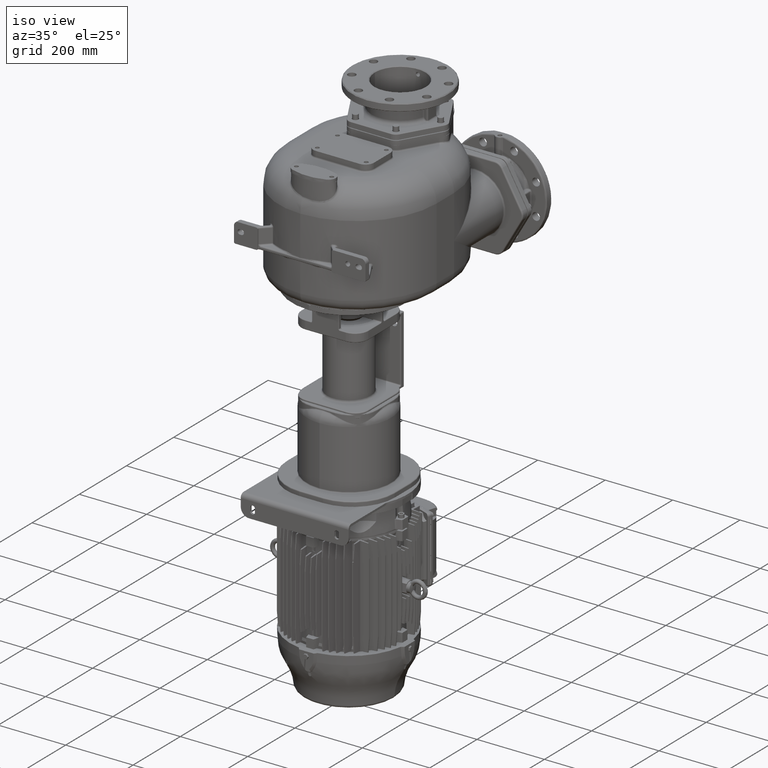
[diagram: clean part render]
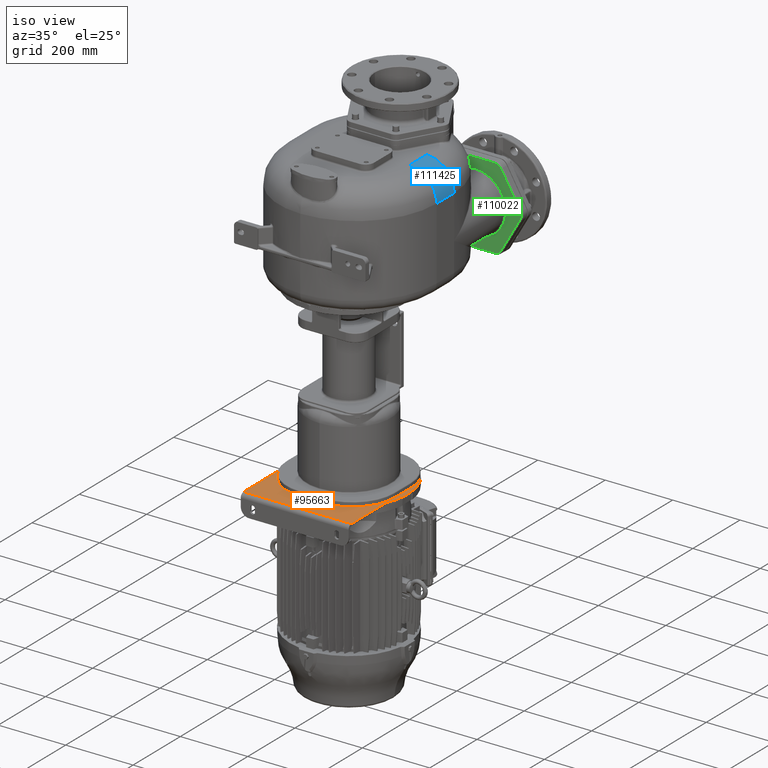
[diagram: same view with three faces highlighted in distinct colors, each labeled with its STEP entity id]
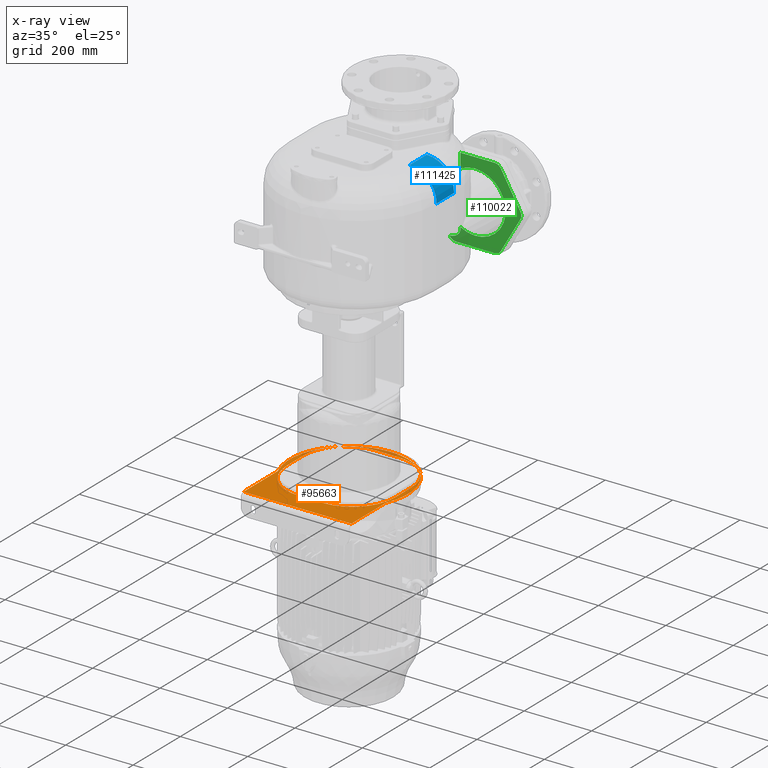
[diagram: x-ray of the same camera — body ghosted, the three highlighted faces saturated]
A machine part, iso view with three faces highlighted in distinct colors.
The next image is the same camera in x-ray (body ghosted, the three faces saturated) — at least one of them is partly hidden behind the body in this view.
Their STEP definitions:

[orange] entity #95663 — the highlighted planar face has unit normal (0, 0, -1).
#31430=CARTESIAN_POINT('',(1.8E2,1.54E2,-7.005E2));
#31431=DIRECTION('',(0.E0,0.E0,-1.E0));
#31432=DIRECTION('',(-1.E0,0.E0,0.E0));
#31433=AXIS2_PLACEMENT_3D('',#31430,#31431,#31432);
#31439=CARTESIAN_POINT('',(0.E0,2.29E2,-7.005E2));
#31440=DIRECTION('',(0.E0,0.E0,-1.E0));
#31441=DIRECTION('',(-9.230769230769E-1,-3.846153846154E-1,0.E0));
#31442=AXIS2_PLACEMENT_3D('',#31439,#31440,#31441);
#31444=DIRECTION('',(0.E0,-1.E0,0.E0));
#31445=VECTOR('',#31444,1.43E2);
#31446=CARTESIAN_POINT('',(1.6E2,1.54E2,-7.005E2));
#31447=LINE('',#31446,#31445);
#31448=DIRECTION('',(0.E0,1.E0,0.E0));
#31449=VECTOR('',#31448,1.43E2);
#31450=CARTESIAN_POINT('',(-1.6E2,1.1E1,-7.005E2));
#31451=LINE('',#31450,#31449);
#31461=DIRECTION('',(1.E0,0.E0,0.E0));
#31462=VECTOR('',#31461,3.2E2);
#31463=CARTESIAN_POINT('',(-1.6E2,1.1E1,-7.005E2));
#31464=LINE('',#31463,#31462);
#31645=CARTESIAN_POINT('',(-1.8E2,1.54E2,-7.005E2));
#31646=DIRECTION('',(0.E0,0.E0,-1.E0));
#31647=DIRECTION('',(9.230769230769E-1,3.846153846153E-1,0.E0));
#31648=AXIS2_PLACEMENT_3D('',#31645,#31646,#31647);
#31682=CARTESIAN_POINT('',(3.5E1,2.64E2,-7.005E2));
#31683=DIRECTION('',(0.E0,0.E0,1.E0));
#31684=DIRECTION('',(1.E0,0.E0,0.E0));
#31685=AXIS2_PLACEMENT_3D('',#31682,#31683,#31684);
#31696=DIRECTION('',(0.E0,1.E0,0.E0));
#31697=VECTOR('',#31696,7.E1);
#31698=CARTESIAN_POINT('',(1.6E2,1.94E2,-7.005E2));
#31699=LINE('',#31698,#31697);
#31708=CARTESIAN_POINT('',(3.5E1,1.94E2,-7.005E2));
#31709=DIRECTION('',(0.E0,0.E0,1.E0));
#31710=DIRECTION('',(0.E0,-1.E0,0.E0));
#31711=AXIS2_PLACEMENT_3D('',#31708,#31709,#31710);
#31722=DIRECTION('',(1.E0,0.E0,0.E0));
#31723=VECTOR('',#31722,7.E1);
#31724=CARTESIAN_POINT('',(-3.5E1,6.9E1,-7.005E2));
#31725=LINE('',#31724,#31723);
#31734=CARTESIAN_POINT('',(-3.5E1,1.94E2,-7.005E2));
#31735=DIRECTION('',(0.E0,0.E0,1.E0));
#31736=DIRECTION('',(-1.E0,-2.728484105319E-14,0.E0));
#31737=AXIS2_PLACEMENT_3D('',#31734,#31735,#31736);
#31748=DIRECTION('',(0.E0,-1.E0,0.E0));
#31749=VECTOR('',#31748,7.E1);
#31750=CARTESIAN_POINT('',(-1.6E2,2.64E2,-7.005E2));
#31751=LINE('',#31750,#31749);
#31760=CARTESIAN_POINT('',(-3.5E1,2.64E2,-7.005E2));
#31761=DIRECTION('',(0.E0,0.E0,1.E0));
#31762=DIRECTION('',(0.E0,1.E0,0.E0));
#31763=AXIS2_PLACEMENT_3D('',#31760,#31761,#31762);
#31774=DIRECTION('',(-1.E0,0.E0,0.E0));
#31775=VECTOR('',#31774,7.E1);
#31776=CARTESIAN_POINT('',(3.5E1,3.89E2,-7.005E2));
#31777=LINE('',#31776,#31775);
#56590=CARTESIAN_POINT('',(1.6E2,1.54E2,-7.005E2));
#56591=CARTESIAN_POINT('',(1.6E2,1.1E1,-7.005E2));
#56592=VERTEX_POINT('',#56590);
#56593=VERTEX_POINT('',#56591);
#56598=CARTESIAN_POINT('',(-1.6E2,1.1E1,-7.005E2));
#56599=CARTESIAN_POINT('',(-1.6E2,1.54E2,-7.005E2));
#56600=VERTEX_POINT('',#56598);
#56601=VERTEX_POINT('',#56599);
#56606=CARTESIAN_POINT('',(-1.615384615385E2,1.616923076923E2,-7.005E2));
#56607=VERTEX_POINT('',#56606);
#56608=CARTESIAN_POINT('',(1.615384615385E2,1.616923076923E2,-7.005E2));
#56609=VERTEX_POINT('',#56608);
#56642=CARTESIAN_POINT('',(1.6E2,2.64E2,-7.005E2));
#56643=CARTESIAN_POINT('',(3.5E1,3.89E2,-7.005E2));
#56644=VERTEX_POINT('',#56642);
#56645=VERTEX_POINT('',#56643);
#56646=CARTESIAN_POINT('',(-3.5E1,3.89E2,-7.005E2));
#56647=VERTEX_POINT('',#56646);
#56648=CARTESIAN_POINT('',(-1.6E2,2.64E2,-7.005E2));
#56649=VERTEX_POINT('',#56648);
#56650=CARTESIAN_POINT('',(-1.6E2,1.94E2,-7.005E2));
#56651=VERTEX_POINT('',#56650);
#56652=CARTESIAN_POINT('',(-3.5E1,6.9E1,-7.005E2));
#56653=VERTEX_POINT('',#56652);
#56654=CARTESIAN_POINT('',(3.5E1,6.9E1,-7.005E2));
#56655=VERTEX_POINT('',#56654);
#56656=CARTESIAN_POINT('',(1.6E2,1.94E2,-7.005E2));
#56657=VERTEX_POINT('',#56656);
#95629=CARTESIAN_POINT('',(0.E0,2.29E2,-7.005E2));
#95630=DIRECTION('',(0.E0,0.E0,-1.E0));
#95631=DIRECTION('',(-1.E0,0.E0,0.E0));
#95632=AXIS2_PLACEMENT_3D('',#95629,#95630,#95631);
#95633=PLANE('',#95632);
#95634=ORIENTED_EDGE('',*,*,#63166,.T.);
#95635=ORIENTED_EDGE('',*,*,#95609,.F.);
#95636=ORIENTED_EDGE('',*,*,#95620,.T.);
#95638=ORIENTED_EDGE('',*,*,#95637,.F.);
#95640=ORIENTED_EDGE('',*,*,#95639,.T.);
#95642=ORIENTED_EDGE('',*,*,#95641,.F.);
#95643=EDGE_LOOP('',(#95634,#95635,#95636,#95638,#95640,#95642));
#95644=FACE_OUTER_BOUND('',#95643,.F.);
#95646=ORIENTED_EDGE('',*,*,#95645,.T.);
#95648=ORIENTED_EDGE('',*,*,#95647,.T.);
#95650=ORIENTED_EDGE('',*,*,#95649,.T.);
#95652=ORIENTED_EDGE('',*,*,#95651,.T.);
#95654=ORIENTED_EDGE('',*,*,#95653,.T.);
#95656=ORIENTED_EDGE('',*,*,#95655,.T.);
#95658=ORIENTED_EDGE('',*,*,#95657,.T.);
#95660=ORIENTED_EDGE('',*,*,#95659,.T.);
#95661=EDGE_LOOP('',(#95646,#95648,#95650,#95652,#95654,#95656,#95658,#95660));
#95662=FACE_BOUND('',#95661,.F.);
#95663=ADVANCED_FACE('',(#95644,#95662),#95633,.F.);
#31434=CIRCLE('',#31433,2.E1);
#31443=CIRCLE('',#31442,1.75E2);
#31649=CIRCLE('',#31648,2.E1);
#31686=CIRCLE('',#31685,1.25E2);
#31712=CIRCLE('',#31711,1.25E2);
#31738=CIRCLE('',#31737,1.25E2);
#31764=CIRCLE('',#31763,1.25E2);
#63166=EDGE_CURVE('',#56607,#56609,#31443,.T.);
#95609=EDGE_CURVE('',#56592,#56609,#31434,.T.);
#95620=EDGE_CURVE('',#56592,#56593,#31447,.T.);
#95637=EDGE_CURVE('',#56600,#56593,#31464,.T.);
#95639=EDGE_CURVE('',#56600,#56601,#31451,.T.);
#95641=EDGE_CURVE('',#56607,#56601,#31649,.T.);
#95645=EDGE_CURVE('',#56644,#56645,#31686,.T.);
#95647=EDGE_CURVE('',#56645,#56647,#31777,.T.);
#95649=EDGE_CURVE('',#56647,#56649,#31764,.T.);
#95651=EDGE_CURVE('',#56649,#56651,#31751,.T.);
#95653=EDGE_CURVE('',#56651,#56653,#31738,.T.);
#95655=EDGE_CURVE('',#56653,#56655,#31725,.T.);
#95657=EDGE_CURVE('',#56655,#56657,#31712,.T.);
#95659=EDGE_CURVE('',#56657,#56644,#31699,.T.);

[blue] entity #111425 — the highlighted cylindrical surface (edge-blend (fillet) strip) has radius 81 mm, axis along (0, 1, 0).
#42362=DIRECTION('',(0.E0,1.E0,0.E0));
#42363=VECTOR('',#42362,7.4E1);
#42364=CARTESIAN_POINT('',(1.7E2,2.42E2,1.75E2));
#42365=LINE('',#42364,#42363);
#43174=CARTESIAN_POINT('',(1.7E2,3.16E2,9.4E1));
#43175=DIRECTION('',(0.E0,1.E0,0.E0));
#43176=DIRECTION('',(0.E0,0.E0,1.E0));
#43177=AXIS2_PLACEMENT_3D('',#43174,#43175,#43176);
#44003=DIRECTION('',(0.E0,1.E0,0.E0));
#44004=VECTOR('',#44003,7.399999999971E1);
#44005=CARTESIAN_POINT('',(2.51E2,2.42E2,9.4E1));
#44006=LINE('',#44005,#44004);
#45189=CARTESIAN_POINT('',(1.7E2,2.42E2,9.4E1));
#45190=DIRECTION('',(0.E0,1.E0,0.E0));
#45191=DIRECTION('',(0.E0,0.E0,1.E0));
#45192=AXIS2_PLACEMENT_3D('',#45189,#45190,#45191);
#54140=CARTESIAN_POINT('',(2.51E2,2.42E2,9.4E1));
#54142=VERTEX_POINT('',#54140);
#54245=CARTESIAN_POINT('',(1.7E2,2.42E2,1.75E2));
#54246=CARTESIAN_POINT('',(1.7E2,3.16E2,1.75E2));
#54247=VERTEX_POINT('',#54245);
#54248=VERTEX_POINT('',#54246);
#54249=CARTESIAN_POINT('',(2.51E2,3.159999999997E2,9.4E1));
#54250=VERTEX_POINT('',#54249);
#111414=CARTESIAN_POINT('',(1.7E2,2.403159753846E2,9.4E1));
#111415=DIRECTION('',(0.E0,1.E0,0.E0));
#111416=DIRECTION('',(0.E0,0.E0,1.E0));
#111417=AXIS2_PLACEMENT_3D('',#111414,#111415,#111416);
#111418=CYLINDRICAL_SURFACE('',#111417,8.1E1);
#111419=ORIENTED_EDGE('',*,*,#109089,.T.);
#111420=ORIENTED_EDGE('',*,*,#109743,.T.);
#111421=ORIENTED_EDGE('',*,*,#110417,.F.);
#111422=ORIENTED_EDGE('',*,*,#107984,.F.);
#111423=EDGE_LOOP('',(#111419,#111420,#111421,#111422));
#111424=FACE_OUTER_BOUND('',#111423,.F.);
#111425=ADVANCED_FACE('',(#111424),#111418,.T.);
#43178=CIRCLE('',#43177,8.1E1);
#45193=CIRCLE('',#45192,8.1E1);
#107984=EDGE_CURVE('',#54247,#54142,#45193,.T.);
#109089=EDGE_CURVE('',#54247,#54248,#42365,.T.);
#109743=EDGE_CURVE('',#54248,#54250,#43178,.T.);
#110417=EDGE_CURVE('',#54142,#54250,#44006,.T.);

[green] entity #110022 — the highlighted planar face has unit normal (0, 1, 0).
#43572=DIRECTION('',(1.114339213422E-5,4.783922706641E-7,9.999999999378E-1));
#43573=VECTOR('',#43572,4.265605010146E1);
#43574=CARTESIAN_POINT('',(1.207030092966E2,5.284999999754E2,4.334394992301E1));
#43575=LINE('',#43574,#43573);
#43576=DIRECTION('',(-1.E0,1.997594601653E-7,2.138115637609E-10));
#43577=VECTOR('',#43576,1.020315422893E2);
#43578=CARTESIAN_POINT('',(2.227350269190E2,5.285E2,8.6E1));
#43579=LINE('',#43578,#43577);
#43580=CARTESIAN_POINT('',(2.227350269190E2,5.285E2,6.5E1));
#43581=DIRECTION('',(0.E0,-1.E0,0.E0));
#43582=DIRECTION('',(8.660254037844E-1,0.E0,5.E-1));
#43583=AXIS2_PLACEMENT_3D('',#43580,#43581,#43582);
#43585=DIRECTION('',(-5.E-1,0.E0,8.660254037844E-1));
#43586=VECTOR('',#43585,1.154700538379E2);
#43587=CARTESIAN_POINT('',(2.986565873174E2,5.285E2,-2.45E1));
#43588=LINE('',#43587,#43586);
#43589=CARTESIAN_POINT('',(2.804700538379E2,5.285E2,-3.5E1));
#43590=DIRECTION('',(0.E0,-1.E0,0.E0));
#43591=DIRECTION('',(8.660254037844E-1,0.E0,-5.E-1));
#43592=AXIS2_PLACEMENT_3D('',#43589,#43590,#43591);
#43594=DIRECTION('',(5.E-1,0.E0,8.660254037844E-1));
#43595=VECTOR('',#43594,1.154700538379E2);
#43596=CARTESIAN_POINT('',(2.409215603984E2,5.285E2,-1.455E2));
#43597=LINE('',#43596,#43595);
#43598=CARTESIAN_POINT('',(2.227350269190E2,5.285E2,-1.35E2));
#43599=DIRECTION('',(0.E0,-1.E0,0.E0));
#43600=DIRECTION('',(0.E0,0.E0,-1.E0));
#43601=AXIS2_PLACEMENT_3D('',#43598,#43599,#43600);
#43603=DIRECTION('',(1.E0,0.E0,0.E0));
#43604=VECTOR('',#43603,1.154700538379E2);
#43605=CARTESIAN_POINT('',(1.072649730810E2,5.285E2,-1.56E2));
#43606=LINE('',#43605,#43604);
#43607=CARTESIAN_POINT('',(1.072649730810E2,5.285E2,-1.35E2));
#43608=DIRECTION('',(0.E0,-1.E0,0.E0));
#43609=DIRECTION('',(-8.660254037844E-1,0.E0,-5.E-1));
#43610=AXIS2_PLACEMENT_3D('',#43607,#43608,#43609);
#43612=DIRECTION('',(5.000000006738E-1,-3.554831689555E-5,-8.660254026658E-1));
#43613=VECTOR('',#43612,1.024011470125E0);
#43614=CARTESIAN_POINT('',(8.856643386581E1,5.285000364019E2,
-1.446131800543E2));
#43615=LINE('',#43614,#43613);
#43616=CARTESIAN_POINT('',(8.856643386581E1,5.285000364019E2,
-1.446131800543E2));
#43617=CARTESIAN_POINT('',(8.893490012496E1,5.285000428215E2,
-1.445982580234E2));
#43618=CARTESIAN_POINT('',(8.966942974648E1,5.284999801265E2,
-1.445602355113E2));
#43619=CARTESIAN_POINT('',(9.076499790885E1,5.285000053251E2,
-1.444775128817E2));
#43620=CARTESIAN_POINT('',(9.185129564195E1,5.284999985731E2,
-1.443701649860E2));
#43621=CARTESIAN_POINT('',(9.292639591194E1,5.285000003823E2,
-1.442385438762E2));
#43622=CARTESIAN_POINT('',(9.398811797777E1,5.284999998976E2,
-1.440833589040E2));
#43623=CARTESIAN_POINT('',(9.503444963781E1,5.285000000274E2,
-1.439054006673E2));
#43624=CARTESIAN_POINT('',(9.606320258607E1,5.284999999926E2,
-1.437054862044E2));
#43625=CARTESIAN_POINT('',(9.707284718355E1,5.285000000020E2,
-1.434844172297E2));
#43626=CARTESIAN_POINT('',(9.806230743744E1,5.284999999995E2,
-1.432429933006E2));
#43627=CARTESIAN_POINT('',(9.903042682229E1,5.285000000001E2,
-1.429821093916E2));
#43628=CARTESIAN_POINT('',(9.997640529532E1,5.285E2,-1.427026493188E2));
#43629=CARTESIAN_POINT('',(1.008999844016E2,5.285E2,-1.424053778755E2));
#43630=CARTESIAN_POINT('',(1.018008739888E2,5.285E2,-1.420910839890E2));
#43631=CARTESIAN_POINT('',(1.026789037764E2,5.285E2,-1.417605378457E2));
#43632=CARTESIAN_POINT('',(1.035333489942E2,5.285E2,-1.414147329121E2));
#43633=CARTESIAN_POINT('',(1.043634159956E2,5.285E2,-1.410546934548E2));
#43634=CARTESIAN_POINT('',(1.051682894225E2,5.285E2,-1.406815522674E2));
#43635=CARTESIAN_POINT('',(1.059479994379E2,5.284999999999E2,
-1.402961137335E2));
#43636=CARTESIAN_POINT('',(1.067030787031E2,5.285000000005E2,
-1.398989094658E2));
#43637=CARTESIAN_POINT('',(1.074339966401E2,5.284999999982E2,
-1.394904517224E2));
#43638=CARTESIAN_POINT('',(1.081412775930E2,5.285000000067E2,
-1.390711762151E2));
#43639=CARTESIAN_POINT('',(1.088253710621E2,5.284999999750E2,
-1.386415142325E2));
#43640=CARTESIAN_POINT('',(1.094867794516E2,5.285000000934E2,
-1.382018287291E2));
#43641=CARTESIAN_POINT('',(1.101259278865E2,5.284999996516E2,
-1.377524673156E2));
#43642=CARTESIAN_POINT('',(1.107433084739E2,5.285000013003E2,
-1.372940233952E2));
#43643=CARTESIAN_POINT('',(1.113388860563E2,5.284999951471E2,
-1.368263547192E2));
#43644=CARTESIAN_POINT('',(1.117227579522E2,5.285000104565E2,
-1.365098232170E2));
#43645=CARTESIAN_POINT('',(1.119108973195E2,5.285000121046E2,
-1.363497954112E2));
#43647=CARTESIAN_POINT('',(1.119108973195E2,5.285000121046E2,
-1.363497954112E2));
#43648=CARTESIAN_POINT('',(1.121390694068E2,5.285000150001E2,
-1.361557164300E2));
#43649=CARTESIAN_POINT('',(1.125830007053E2,5.284999930385E2,
-1.357685246533E2));
#43650=CARTESIAN_POINT('',(1.132119995401E2,5.285000018653E2,
-1.351917953622E2));
#43651=CARTESIAN_POINT('',(1.138060198235E2,5.284999995002E2,
-1.346191012912E2));
#43652=CARTESIAN_POINT('',(1.143665978317E2,5.285000001339E2,
-1.340505490189E2));
#43653=CARTESIAN_POINT('',(1.148953856148E2,5.284999999641E2,
-1.334860663446E2));
#43654=CARTESIAN_POINT('',(1.153939400468E2,5.285000000096E2,
-1.329255151894E2));
#43655=CARTESIAN_POINT('',(1.158634803572E2,5.284999999974E2,
-1.323689799438E2));
#43656=CARTESIAN_POINT('',(1.163049573992E2,5.285000000007E2,
-1.318167793817E2));
#43657=CARTESIAN_POINT('',(1.167193664767E2,5.284999999998E2,
-1.312691313652E2));
#43658=CARTESIAN_POINT('',(1.171079367602E2,5.285E2,-1.307258553077E2));
#43659=CARTESIAN_POINT('',(1.174719848670E2,5.285E2,-1.301864841289E2));
#43660=CARTESIAN_POINT('',(1.178128121026E2,5.285E2,-1.296503535046E2));
#43661=CARTESIAN_POINT('',(1.181313050415E2,5.285E2,-1.291174043102E2));
#43662=CARTESIAN_POINT('',(1.184280062018E2,5.285E2,-1.285880469896E2));
#43663=CARTESIAN_POINT('',(1.187035149227E2,5.285E2,-1.280625610379E2));
#43664=CARTESIAN_POINT('',(1.189585188958E2,5.285E2,-1.275409873056E2));
#43665=CARTESIAN_POINT('',(1.191938219485E2,5.285E2,-1.270229746971E2));
#43666=CARTESIAN_POINT('',(1.194101486048E2,5.285E2,-1.265081356194E2));
#43667=CARTESIAN_POINT('',(1.196081322651E2,5.285E2,-1.259960114409E2));
#43668=CARTESIAN_POINT('',(1.197882880006E2,5.285E2,-1.254865119339E2));
#43669=CARTESIAN_POINT('',(1.199511513117E2,5.284999999999E2,
-1.249795218671E2));
#43670=CARTESIAN_POINT('',(1.200971916020E2,5.285000000003E2,
-1.244748692563E2));
#43671=CARTESIAN_POINT('',(1.202268370867E2,5.284999999989E2,
-1.239722987241E2));
#43672=CARTESIAN_POINT('',(1.203404521559E2,5.285000000041E2,
-1.234715136933E2));
#43673=CARTESIAN_POINT('',(1.204383427371E2,5.284999999847E2,
-1.229721291383E2));
#43674=CARTESIAN_POINT('',(1.205207063995E2,5.285000000570E2,
-1.224739382937E2));
#43675=CARTESIAN_POINT('',(1.205876602924E2,5.284999997873E2,
-1.219768994649E2));
#43676=CARTESIAN_POINT('',(1.206394294904E2,5.285000007939E2,
-1.214809984198E2));
#43677=CARTESIAN_POINT('',(1.206762923636E2,5.284999970371E2,
-1.209862165681E2));
#43678=CARTESIAN_POINT('',(1.206981758033E2,5.285000110578E2,
-1.204925203233E2));
#43679=CARTESIAN_POINT('',(1.207034604214E2,5.284999761737E2,
-1.201640589297E2));
#43680=CARTESIAN_POINT('',(1.207034846231E2,5.284999799534E2,
-1.199999999991E2));
#43682=DIRECTION('',(-5.466232286859E-6,3.011523540301E-6,9.999999999805E-1));
#43683=VECTOR('',#43682,6.655701361718E0);
#43684=CARTESIAN_POINT('',(1.207034846231E2,5.284999799534E2,
-1.199999999991E2));
#43685=LINE('',#43684,#43683);
#43686=CARTESIAN_POINT('',(1.65E2,5.285E2,-3.5E1));
#43687=DIRECTION('',(0.E0,1.E0,0.E0));
#43688=DIRECTION('',(-4.921837623929E-1,0.E0,8.704913233552E-1));
#43689=AXIS2_PLACEMENT_3D('',#43686,#43687,#43688);
#54594=CARTESIAN_POINT('',(2.409215603984E2,5.285E2,7.55E1));
#54595=CARTESIAN_POINT('',(2.227350269190E2,5.285E2,8.6E1));
#54596=VERTEX_POINT('',#54594);
#54597=VERTEX_POINT('',#54595);
#54600=CARTESIAN_POINT('',(2.986565873174E2,5.285E2,-2.45E1));
#54601=VERTEX_POINT('',#54600);
#54604=CARTESIAN_POINT('',(2.986565873174E2,5.285E2,-4.55E1));
#54605=VERTEX_POINT('',#54604);
#54608=CARTESIAN_POINT('',(2.409215603984E2,5.285E2,-1.455E2));
#54609=VERTEX_POINT('',#54608);
#54612=CARTESIAN_POINT('',(2.227350269190E2,5.285E2,-1.56E2));
#54613=VERTEX_POINT('',#54612);
#54616=CARTESIAN_POINT('',(1.072649730810E2,5.285E2,-1.56E2));
#54617=VERTEX_POINT('',#54616);
#54620=CARTESIAN_POINT('',(8.907843960156E1,5.285E2,-1.455E2));
#54621=VERTEX_POINT('',#54620);
#54624=CARTESIAN_POINT('',(1.207034613846E2,5.285E2,4.334421910197E1));
#54625=CARTESIAN_POINT('',(1.207034846668E2,5.285E2,-1.133442322659E2));
#54626=VERTEX_POINT('',#54624);
#54627=VERTEX_POINT('',#54625);
#54632=CARTESIAN_POINT('',(1.207034846297E2,5.285000203818E2,8.600000002182E1));
#54633=VERTEX_POINT('',#54632);
#54634=CARTESIAN_POINT('',(8.856643386581E1,5.285000364019E2,
-1.446131800543E2));
#54635=VERTEX_POINT('',#54634);
#54647=CARTESIAN_POINT('',(1.207034846231E2,5.284999799534E2,
-1.199999999991E2));
#54648=VERTEX_POINT('',#54647);
#54651=VERTEX_POINT('',#43647);
#109988=CARTESIAN_POINT('',(0.E0,5.285E2,-1.75E2));
#109989=DIRECTION('',(0.E0,1.E0,0.E0));
#109990=DIRECTION('',(1.E0,0.E0,0.E0));
#109991=AXIS2_PLACEMENT_3D('',#109988,#109989,#109990);
#109992=PLANE('',#109991);
#109994=ORIENTED_EDGE('',*,*,#109993,.F.);
#109996=ORIENTED_EDGE('',*,*,#109995,.T.);
#109998=ORIENTED_EDGE('',*,*,#109997,.F.);
#110000=ORIENTED_EDGE('',*,*,#109999,.F.);
#110002=ORIENTED_EDGE('',*,*,#110001,.F.);
#110004=ORIENTED_EDGE('',*,*,#110003,.F.);
#110006=ORIENTED_EDGE('',*,*,#110005,.F.);
#110008=ORIENTED_EDGE('',*,*,#110007,.F.);
#110010=ORIENTED_EDGE('',*,*,#110009,.F.);
#110012=ORIENTED_EDGE('',*,*,#110011,.F.);
#110013=ORIENTED_EDGE('',*,*,#109976,.F.);
#110015=ORIENTED_EDGE('',*,*,#110014,.T.);
#110017=ORIENTED_EDGE('',*,*,#110016,.T.);
#110019=ORIENTED_EDGE('',*,*,#110018,.T.);
#110020=EDGE_LOOP('',(#109994,#109996,#109998,#110000,#110002,#110004,#110006,
#110008,#110010,#110012,#110013,#110015,#110017,#110019));
#110021=FACE_OUTER_BOUND('',#110020,.F.);
#110022=ADVANCED_FACE('',(#110021),#109992,.F.);
#43584=CIRCLE('',#43583,2.1E1);
#43593=CIRCLE('',#43592,2.1E1);
#43602=CIRCLE('',#43601,2.1E1);
#43611=CIRCLE('',#43610,2.1E1);
#43646=B_SPLINE_CURVE_WITH_KNOTS('',3,(#43616,#43617,#43618,#43619,#43620,
#43621,#43622,#43623,#43624,#43625,#43626,#43627,#43628,#43629,#43630,#43631,
#43632,#43633,#43634,#43635,#43636,#43637,#43638,#43639,#43640,#43641,#43642,
#43643,#43644,#43645),.UNSPECIFIED.,.F.,.F.,(4,1,1,1,1,1,1,1,1,1,1,1,1,1,1,1,1,
1,1,1,1,1,1,1,1,1,1,4),(0.E0,3.703703703704E-2,7.407407407407E-2,
1.111111111111E-1,1.481481481481E-1,1.851851851852E-1,2.222222222222E-1,
2.592592592593E-1,2.962962962963E-1,3.333333333333E-1,3.703703703704E-1,
4.074074074074E-1,4.444444444444E-1,4.814814814815E-1,5.185185185185E-1,
5.555555555556E-1,5.925925925926E-1,6.296296296296E-1,6.666666666667E-1,
7.037037037037E-1,7.407407407407E-1,7.777777777778E-1,8.148148148148E-1,
8.518518518519E-1,8.888888888889E-1,9.259259259259E-1,9.629629629630E-1,1.E0),
.UNSPECIFIED.);
#43681=B_SPLINE_CURVE_WITH_KNOTS('',3,(#43647,#43648,#43649,#43650,#43651,
#43652,#43653,#43654,#43655,#43656,#43657,#43658,#43659,#43660,#43661,#43662,
#43663,#43664,#43665,#43666,#43667,#43668,#43669,#43670,#43671,#43672,#43673,
#43674,#43675,#43676,#43677,#43678,#43679,#43680),.UNSPECIFIED.,.F.,.F.,(4,1,1,
1,1,1,1,1,1,1,1,1,1,1,1,1,1,1,1,1,1,1,1,1,1,1,1,1,1,1,1,4),(0.E0,
3.225806451613E-2,6.451612903226E-2,9.677419354839E-2,1.290322580645E-1,
1.612903225806E-1,1.935483870968E-1,2.258064516129E-1,2.580645161290E-1,
2.903225806452E-1,3.225806451613E-1,3.548387096774E-1,3.870967741935E-1,
4.193548387097E-1,4.516129032258E-1,4.838709677419E-1,5.161290322581E-1,
5.483870967742E-1,5.806451612903E-1,6.129032258065E-1,6.451612903226E-1,
6.774193548387E-1,7.096774193548E-1,7.419354838710E-1,7.741935483871E-1,
8.064516129032E-1,8.387096774194E-1,8.709677419355E-1,9.032258064516E-1,
9.354838709677E-1,9.677419354839E-1,1.E0),.UNSPECIFIED.);
#43690=CIRCLE('',#43689,9.E1);
#109976=EDGE_CURVE('',#54635,#54621,#43615,.T.);
#109993=EDGE_CURVE('',#54626,#54627,#43690,.T.);
#109995=EDGE_CURVE('',#54626,#54633,#43575,.T.);
#109997=EDGE_CURVE('',#54597,#54633,#43579,.T.);
#109999=EDGE_CURVE('',#54596,#54597,#43584,.T.);
#110001=EDGE_CURVE('',#54601,#54596,#43588,.T.);
#110003=EDGE_CURVE('',#54605,#54601,#43593,.T.);
#110005=EDGE_CURVE('',#54609,#54605,#43597,.T.);
#110007=EDGE_CURVE('',#54613,#54609,#43602,.T.);
#110009=EDGE_CURVE('',#54617,#54613,#43606,.T.);
#110011=EDGE_CURVE('',#54621,#54617,#43611,.T.);
#110014=EDGE_CURVE('',#54635,#54651,#43646,.T.);
#110016=EDGE_CURVE('',#54651,#54648,#43681,.T.);
#110018=EDGE_CURVE('',#54648,#54627,#43685,.T.);